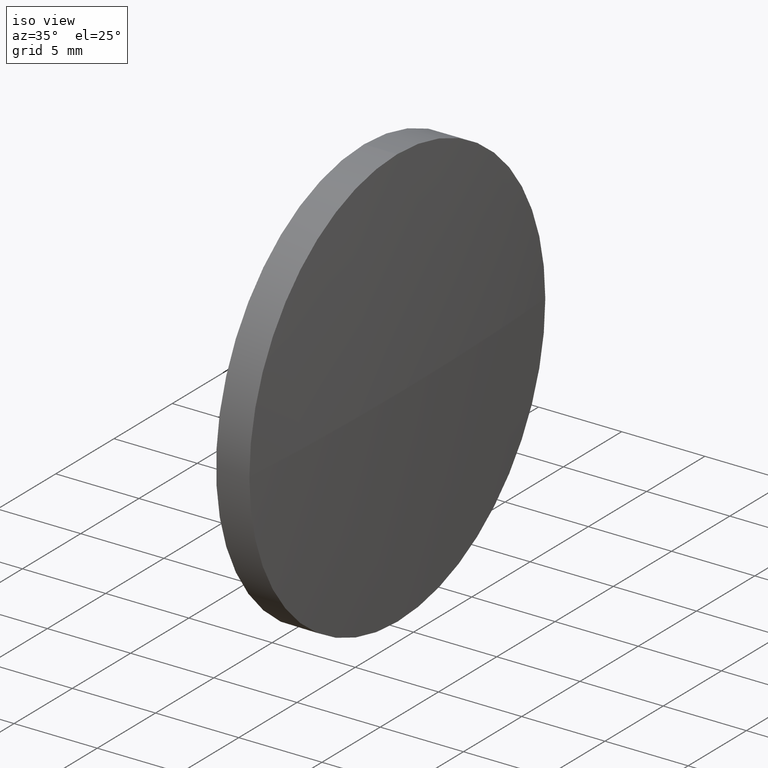
[diagram: clean part render]
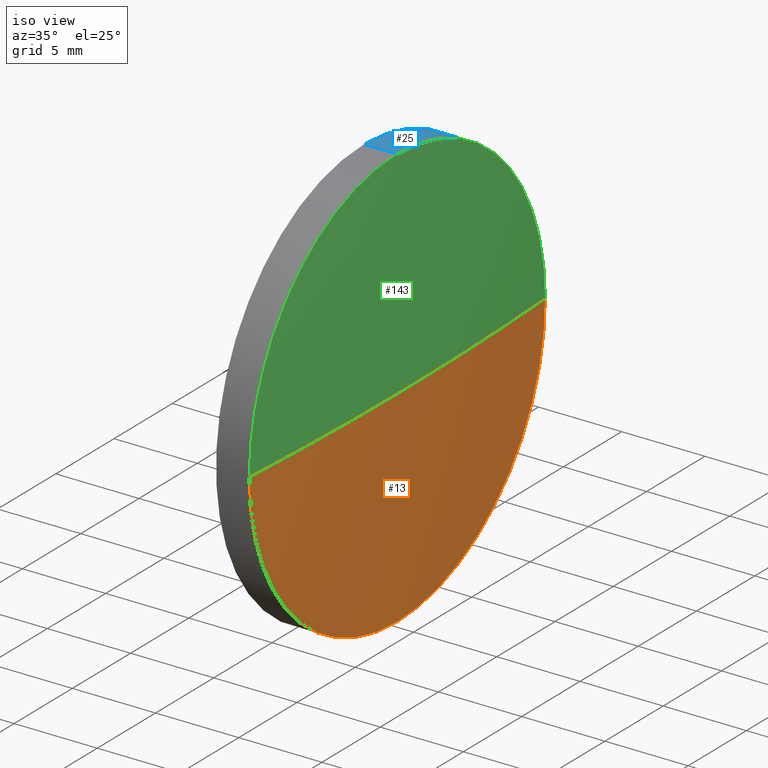
[diagram: same view with three faces highlighted in distinct colors, each labeled with its STEP entity id]
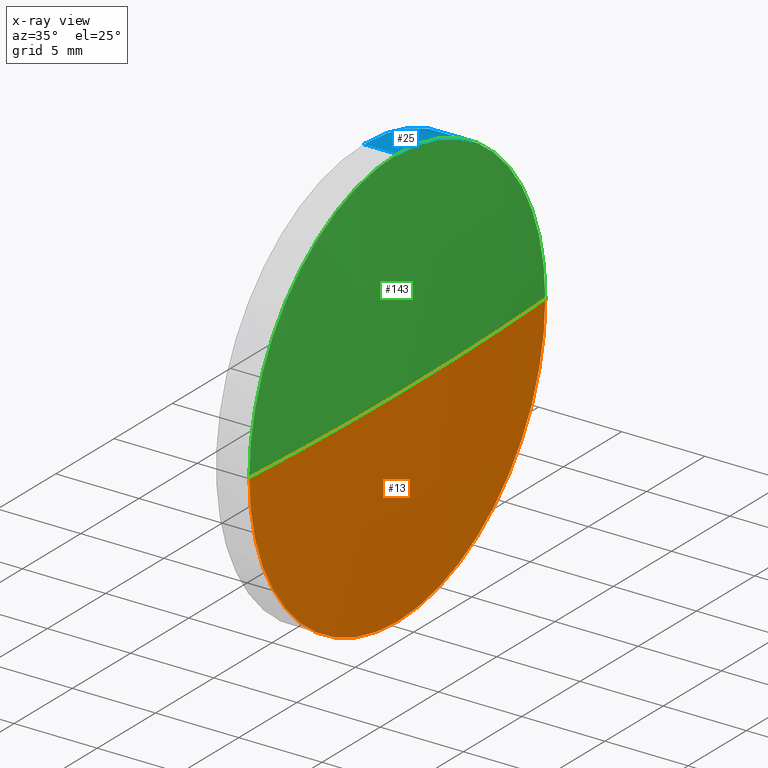
[diagram: x-ray of the same camera — body ghosted, the three highlighted faces saturated]
A machine part, iso view with three faces highlighted in distinct colors.
The next image is the same camera in x-ray (body ghosted, the three faces saturated) — at least one of them is partly hidden behind the body in this view.
Their STEP definitions:

[orange] entity #13 — the highlighted spherical surface has radius 201.812 mm.
#1 = ORIENTED_EDGE ( 'NONE', *, *, #100, .F. ) ;
#2 = DIRECTION ( 'NONE',  ( 0.0000000000000000000, 0.0000000000000000000, 1.000000000000000000 ) ) ;
#5 = DIRECTION ( 'NONE',  ( 0.0000000000000000000, 1.000000000000000000, 1.224646799147353000E-016 ) ) ;
#9 = FACE_OUTER_BOUND ( 'NONE', #112, .T. ) ;
#13 = ADVANCED_FACE ( 'NONE', ( #9 ), #169, .T. ) ;
#14 = EDGE_CURVE ( 'NONE', #142, #50, #130, .T. ) ;
#18 = ORIENTED_EDGE ( 'NONE', *, *, #14, .F. ) ;
#19 = DIRECTION ( 'NONE',  ( 0.0000000000000000000, 1.224646799147353200E-016, -1.000000000000000000 ) ) ;
#23 = AXIS2_PLACEMENT_3D ( 'NONE', #164, #19, #5 ) ;
#26 = DIRECTION ( 'NONE',  ( -1.000000000000000000, -0.0000000000000000000, -0.0000000000000000000 ) ) ;
#34 = CIRCLE ( 'NONE', #122, 201.8124999999969000 ) ;
#39 = VERTEX_POINT ( 'NONE', #175 ) ;
#40 = DIRECTION ( 'NONE',  ( -0.0000000000000000000, 0.0000000000000000000, 1.000000000000000000 ) ) ;
#50 = VERTEX_POINT ( 'NONE', #68 ) ;
#53 = EDGE_CURVE ( 'NONE', #50, #39, #83, .T. ) ;
#68 = CARTESIAN_POINT ( 'NONE',  ( 479.3220861786303400, 184.5773825551713100, -12.69999999999998900 ) ) ;
#73 = CARTESIAN_POINT ( 'NONE',  ( 479.7220861786303800, 184.5773825551711100, 0.0000000000000000000 ) ) ;
#78 = ORIENTED_EDGE ( 'NONE', *, *, #53, .F. ) ;
#82 = AXIS2_PLACEMENT_3D ( 'NONE', #86, #131, #129 ) ;
#83 = CIRCLE ( 'NONE', #170, 12.69999999999998900 ) ;
#85 = DIRECTION ( 'NONE',  ( -1.000000000000000000, -0.0000000000000000000, -0.0000000000000000000 ) ) ;
#86 = CARTESIAN_POINT ( 'NONE',  ( 277.9095861786335000, 184.5773825551711100, 0.0000000000000000000 ) ) ;
#90 = DIRECTION ( 'NONE',  ( 1.000000000000000000, 0.0000000000000000000, 0.0000000000000000000 ) ) ;
#96 = ORIENTED_EDGE ( 'NONE', *, *, #150, .T. ) ;
#100 = EDGE_CURVE ( 'NONE', #139, #142, #34, .T. ) ;
#105 = CARTESIAN_POINT ( 'NONE',  ( 479.3220861786303400, 197.2773825551712400, 0.0000000000000000000 ) ) ;
#112 = EDGE_LOOP ( 'NONE', ( #1, #96, #78, #18 ) ) ;
#122 = AXIS2_PLACEMENT_3D ( 'NONE', #180, #40, #90 ) ;
#127 = AXIS2_PLACEMENT_3D ( 'NONE', #146, #26, #2 ) ;
#129 = DIRECTION ( 'NONE',  ( 0.0000000000000000000, 1.000000000000000000, 0.0000000000000000000 ) ) ;
#130 = CIRCLE ( 'NONE', #127, 12.69999999999998900 ) ;
#131 = DIRECTION ( 'NONE',  ( -0.0000000000000000000, 0.0000000000000000000, -1.000000000000000000 ) ) ;
#139 = VERTEX_POINT ( 'NONE', #73 ) ;
#142 = VERTEX_POINT ( 'NONE', #105 ) ;
#146 = CARTESIAN_POINT ( 'NONE',  ( 479.3220861786303400, 184.5773825551713100, 0.0000000000000000000 ) ) ;
#150 = EDGE_CURVE ( 'NONE', #139, #39, #185, .T. ) ;
#164 = CARTESIAN_POINT ( 'NONE',  ( 277.9095861786335000, 184.5773825551711100, 0.0000000000000000000 ) ) ;
#169 = SPHERICAL_SURFACE ( 'NONE', #82, 201.8124999999969000 ) ;
#170 = AXIS2_PLACEMENT_3D ( 'NONE', #172, #85, #177 ) ;
#172 = CARTESIAN_POINT ( 'NONE',  ( 479.3220861786303400, 184.5773825551713100, 0.0000000000000000000 ) ) ;
#175 = CARTESIAN_POINT ( 'NONE',  ( 479.3220861786303400, 171.8773825551711800, -1.555301434917129200E-015 ) ) ;
#177 = DIRECTION ( 'NONE',  ( 0.0000000000000000000, 0.0000000000000000000, 1.000000000000000000 ) ) ;
#180 = CARTESIAN_POINT ( 'NONE',  ( 277.9095861786335000, 184.5773825551711100, 0.0000000000000000000 ) ) ;
#185 = CIRCLE ( 'NONE', #23, 201.8124999999969300 ) ;

[blue] entity #25 — the highlighted cylindrical surface (partial cylindrical patch) has radius 12.7 mm, axis along (-1, -0, -0).
#2 = DIRECTION ( 'NONE',  ( 0.0000000000000000000, 0.0000000000000000000, 1.000000000000000000 ) ) ;
#3 = EDGE_LOOP ( 'NONE', ( #59, #168, #81, #30, #111 ) ) ;
#4 = DIRECTION ( 'NONE',  ( -1.000000000000000000, -0.0000000000000000000, -0.0000000000000000000 ) ) ;
#8 = AXIS2_PLACEMENT_3D ( 'NONE', #160, #94, #104 ) ;
#14 = EDGE_CURVE ( 'NONE', #142, #50, #130, .T. ) ;
#16 = CARTESIAN_POINT ( 'NONE',  ( 477.3220861786303400, 184.5773825551713100, -12.69999999999998900 ) ) ;
#25 = ADVANCED_FACE ( 'NONE', ( #52 ), #41, .T. ) ;
#26 = DIRECTION ( 'NONE',  ( -1.000000000000000000, -0.0000000000000000000, -0.0000000000000000000 ) ) ;
#30 = ORIENTED_EDGE ( 'NONE', *, *, #157, .F. ) ;
#36 = VECTOR ( 'NONE', #97, 1000.000000000000000 ) ;
#41 = CYLINDRICAL_SURFACE ( 'NONE', #154, 12.69999999999998900 ) ;
#42 = DIRECTION ( 'NONE',  ( 0.0000000000000000000, 0.0000000000000000000, 1.000000000000000000 ) ) ;
#45 = CARTESIAN_POINT ( 'NONE',  ( 477.3220861786303400, 184.5773825551713100, 12.69999999999998900 ) ) ;
#48 = DIRECTION ( 'NONE',  ( -1.000000000000000000, -0.0000000000000000000, -0.0000000000000000000 ) ) ;
#50 = VERTEX_POINT ( 'NONE', #68 ) ;
#51 = CIRCLE ( 'NONE', #8, 12.69999999999998900 ) ;
#52 = FACE_OUTER_BOUND ( 'NONE', #3, .T. ) ;
#55 = VERTEX_POINT ( 'NONE', #113 ) ;
#57 = CARTESIAN_POINT ( 'NONE',  ( 471.5838681429539700, 184.5773825551713100, 0.0000000000000000000 ) ) ;
#59 = ORIENTED_EDGE ( 'NONE', *, *, #14, .T. ) ;
#68 = CARTESIAN_POINT ( 'NONE',  ( 479.3220861786303400, 184.5773825551713100, -12.69999999999998900 ) ) ;
#70 = DIRECTION ( 'NONE',  ( -1.000000000000000000, -0.0000000000000000000, -0.0000000000000000000 ) ) ;
#81 = ORIENTED_EDGE ( 'NONE', *, *, #95, .F. ) ;
#94 = DIRECTION ( 'NONE',  ( -1.000000000000000000, -0.0000000000000000000, -0.0000000000000000000 ) ) ;
#95 = EDGE_CURVE ( 'NONE', #107, #121, #126, .T. ) ;
#97 = DIRECTION ( 'NONE',  ( -1.000000000000000000, -0.0000000000000000000, -0.0000000000000000000 ) ) ;
#104 = DIRECTION ( 'NONE',  ( 0.0000000000000000000, 0.0000000000000000000, 1.000000000000000000 ) ) ;
#105 = CARTESIAN_POINT ( 'NONE',  ( 479.3220861786303400, 197.2773825551712400, 0.0000000000000000000 ) ) ;
#107 = VERTEX_POINT ( 'NONE', #45 ) ;
#111 = ORIENTED_EDGE ( 'NONE', *, *, #114, .T. ) ;
#113 = CARTESIAN_POINT ( 'NONE',  ( 479.3220861786303400, 184.5773825551713100, 12.69999999999998900 ) ) ;
#114 = EDGE_CURVE ( 'NONE', #55, #142, #51, .T. ) ;
#116 = DIRECTION ( 'NONE',  ( 0.0000000000000000000, 0.0000000000000000000, 1.000000000000000000 ) ) ;
#120 = EDGE_CURVE ( 'NONE', #50, #121, #145, .T. ) ;
#121 = VERTEX_POINT ( 'NONE', #16 ) ;
#126 = CIRCLE ( 'NONE', #178, 12.69999999999998900 ) ;
#127 = AXIS2_PLACEMENT_3D ( 'NONE', #146, #26, #2 ) ;
#130 = CIRCLE ( 'NONE', #127, 12.69999999999998900 ) ;
#135 = CARTESIAN_POINT ( 'NONE',  ( 471.5838681429539700, 184.5773825551713100, -12.69999999999998900 ) ) ;
#140 = VECTOR ( 'NONE', #48, 1000.000000000000000 ) ;
#142 = VERTEX_POINT ( 'NONE', #105 ) ;
#145 = LINE ( 'NONE', #135, #140 ) ;
#146 = CARTESIAN_POINT ( 'NONE',  ( 479.3220861786303400, 184.5773825551713100, 0.0000000000000000000 ) ) ;
#149 = CARTESIAN_POINT ( 'NONE',  ( 471.5838681429539700, 184.5773825551713100, 12.69999999999998900 ) ) ;
#154 = AXIS2_PLACEMENT_3D ( 'NONE', #57, #70, #42 ) ;
#157 = EDGE_CURVE ( 'NONE', #55, #107, #173, .T. ) ;
#158 = CARTESIAN_POINT ( 'NONE',  ( 477.3220861786303400, 184.5773825551713100, 0.0000000000000000000 ) ) ;
#160 = CARTESIAN_POINT ( 'NONE',  ( 479.3220861786303400, 184.5773825551713100, 0.0000000000000000000 ) ) ;
#168 = ORIENTED_EDGE ( 'NONE', *, *, #120, .T. ) ;
#173 = LINE ( 'NONE', #149, #36 ) ;
#178 = AXIS2_PLACEMENT_3D ( 'NONE', #158, #4, #116 ) ;

[green] entity #143 — the highlighted spherical surface has radius 201.812 mm.
#5 = DIRECTION ( 'NONE',  ( 0.0000000000000000000, 1.000000000000000000, 1.224646799147353000E-016 ) ) ;
#7 = ORIENTED_EDGE ( 'NONE', *, *, #150, .F. ) ;
#8 = AXIS2_PLACEMENT_3D ( 'NONE', #160, #94, #104 ) ;
#12 = CIRCLE ( 'NONE', #63, 12.69999999999998900 ) ;
#19 = DIRECTION ( 'NONE',  ( 0.0000000000000000000, 1.224646799147353200E-016, -1.000000000000000000 ) ) ;
#23 = AXIS2_PLACEMENT_3D ( 'NONE', #164, #19, #5 ) ;
#27 = FACE_OUTER_BOUND ( 'NONE', #136, .T. ) ;
#28 = CARTESIAN_POINT ( 'NONE',  ( 479.3220861786303400, 184.5773825551713100, 0.0000000000000000000 ) ) ;
#34 = CIRCLE ( 'NONE', #122, 201.8124999999969000 ) ;
#39 = VERTEX_POINT ( 'NONE', #175 ) ;
#40 = DIRECTION ( 'NONE',  ( -0.0000000000000000000, 0.0000000000000000000, 1.000000000000000000 ) ) ;
#43 = EDGE_CURVE ( 'NONE', #39, #55, #12, .T. ) ;
#51 = CIRCLE ( 'NONE', #8, 12.69999999999998900 ) ;
#55 = VERTEX_POINT ( 'NONE', #113 ) ;
#61 = DIRECTION ( 'NONE',  ( -0.0000000000000000000, 0.0000000000000000000, -1.000000000000000000 ) ) ;
#63 = AXIS2_PLACEMENT_3D ( 'NONE', #28, #89, #132 ) ;
#65 = ORIENTED_EDGE ( 'NONE', *, *, #100, .T. ) ;
#73 = CARTESIAN_POINT ( 'NONE',  ( 479.7220861786303800, 184.5773825551711100, 0.0000000000000000000 ) ) ;
#74 = CARTESIAN_POINT ( 'NONE',  ( 277.9095861786335000, 184.5773825551711100, 0.0000000000000000000 ) ) ;
#89 = DIRECTION ( 'NONE',  ( -1.000000000000000000, -0.0000000000000000000, -0.0000000000000000000 ) ) ;
#90 = DIRECTION ( 'NONE',  ( 1.000000000000000000, 0.0000000000000000000, 0.0000000000000000000 ) ) ;
#94 = DIRECTION ( 'NONE',  ( -1.000000000000000000, -0.0000000000000000000, -0.0000000000000000000 ) ) ;
#99 = ORIENTED_EDGE ( 'NONE', *, *, #114, .F. ) ;
#100 = EDGE_CURVE ( 'NONE', #139, #142, #34, .T. ) ;
#104 = DIRECTION ( 'NONE',  ( 0.0000000000000000000, 0.0000000000000000000, 1.000000000000000000 ) ) ;
#105 = CARTESIAN_POINT ( 'NONE',  ( 479.3220861786303400, 197.2773825551712400, 0.0000000000000000000 ) ) ;
#110 = SPHERICAL_SURFACE ( 'NONE', #141, 201.8124999999969000 ) ;
#113 = CARTESIAN_POINT ( 'NONE',  ( 479.3220861786303400, 184.5773825551713100, 12.69999999999998900 ) ) ;
#114 = EDGE_CURVE ( 'NONE', #55, #142, #51, .T. ) ;
#122 = AXIS2_PLACEMENT_3D ( 'NONE', #180, #40, #90 ) ;
#132 = DIRECTION ( 'NONE',  ( 0.0000000000000000000, 0.0000000000000000000, 1.000000000000000000 ) ) ;
#136 = EDGE_LOOP ( 'NONE', ( #7, #65, #99, #183 ) ) ;
#139 = VERTEX_POINT ( 'NONE', #73 ) ;
#141 = AXIS2_PLACEMENT_3D ( 'NONE', #74, #61, #152 ) ;
#142 = VERTEX_POINT ( 'NONE', #105 ) ;
#143 = ADVANCED_FACE ( 'NONE', ( #27 ), #110, .T. ) ;
#150 = EDGE_CURVE ( 'NONE', #139, #39, #185, .T. ) ;
#152 = DIRECTION ( 'NONE',  ( 0.0000000000000000000, 1.000000000000000000, 0.0000000000000000000 ) ) ;
#160 = CARTESIAN_POINT ( 'NONE',  ( 479.3220861786303400, 184.5773825551713100, 0.0000000000000000000 ) ) ;
#164 = CARTESIAN_POINT ( 'NONE',  ( 277.9095861786335000, 184.5773825551711100, 0.0000000000000000000 ) ) ;
#175 = CARTESIAN_POINT ( 'NONE',  ( 479.3220861786303400, 171.8773825551711800, -1.555301434917129200E-015 ) ) ;
#180 = CARTESIAN_POINT ( 'NONE',  ( 277.9095861786335000, 184.5773825551711100, 0.0000000000000000000 ) ) ;
#183 = ORIENTED_EDGE ( 'NONE', *, *, #43, .F. ) ;
#185 = CIRCLE ( 'NONE', #23, 201.8124999999969300 ) ;